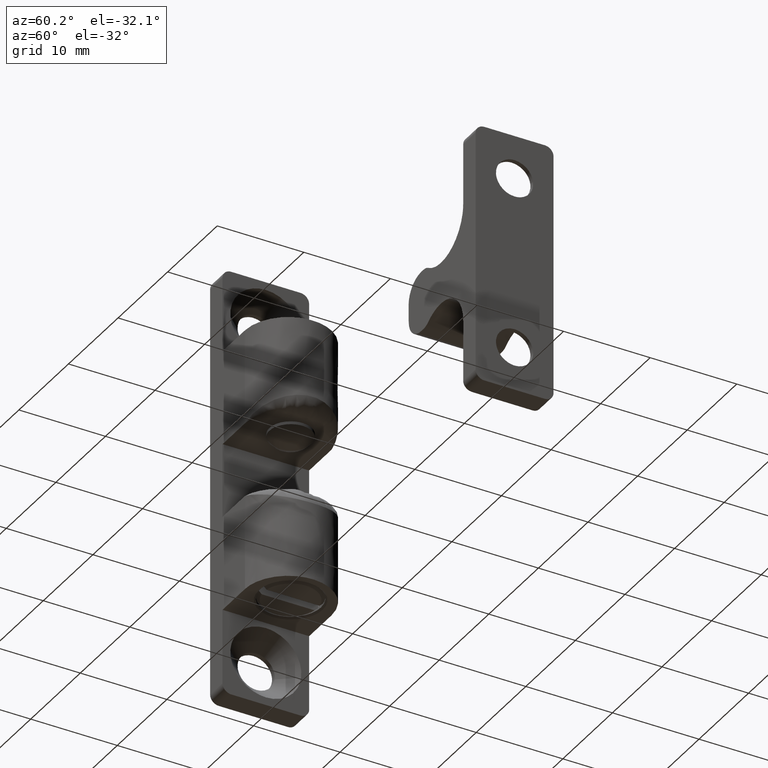
[diagram: clean part render]
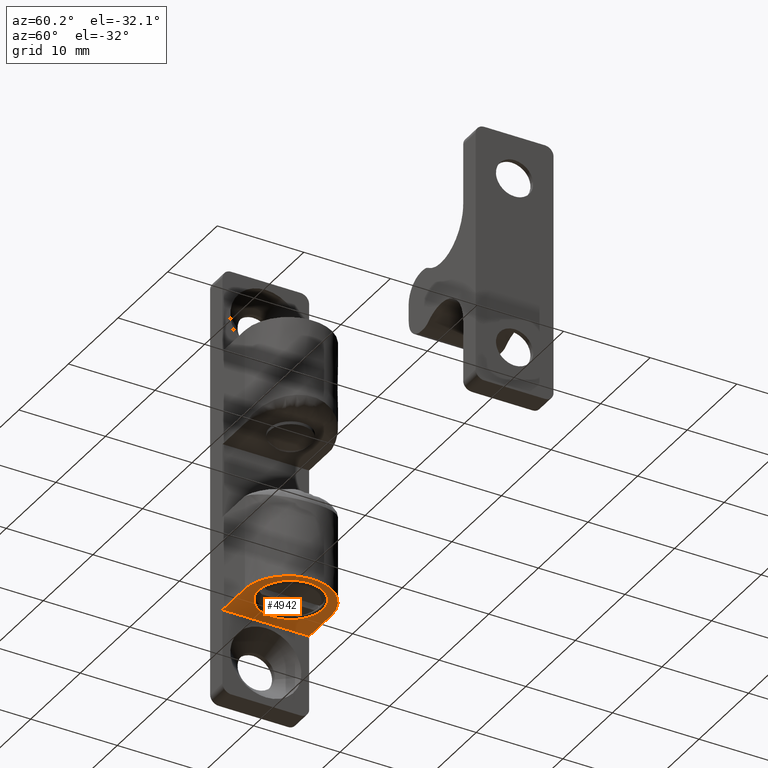
[diagram: same view with one face highlighted and labeled with its STEP entity id]
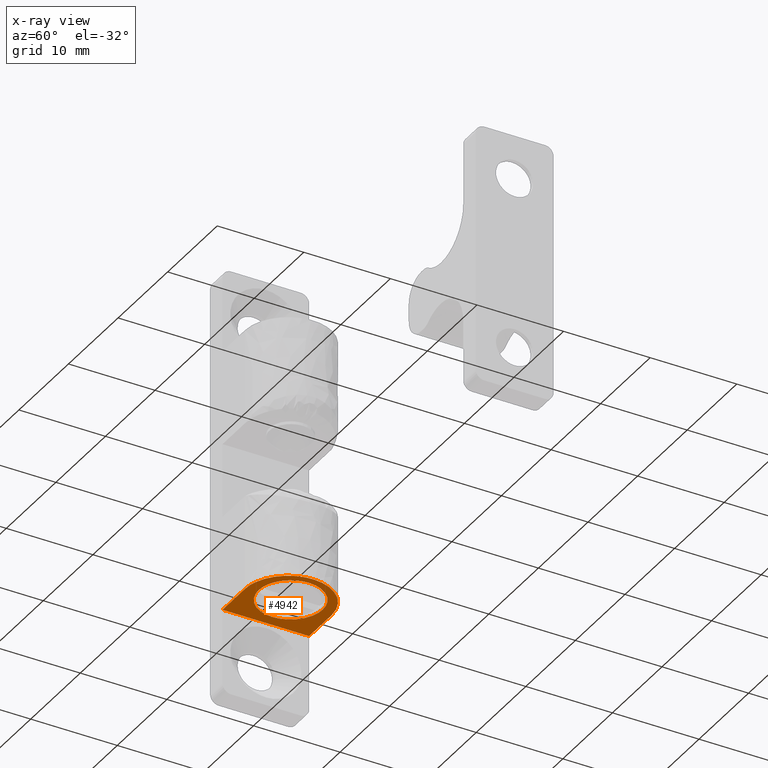
[diagram: x-ray of the same camera — body ghosted, the highlighted face saturated]
A machine part, auxiliary view. The second image highlights one B-rep face of the part: STEP entity #4942.
The next image is the same camera in x-ray: the body ghosted, the highlighted face saturated — about 0% of this face is hidden behind the body in this view.
In plain terms, the highlighted face is a freeform B-spline surface patch.
Its self-contained STEP definition (entity closure, byte-faithful):
#2490=CARTESIAN_POINT('',(15.300000000005880,-3.384256095397491,8.995597098422064));
#2491=VERTEX_POINT('',#2490);
#2497=CARTESIAN_POINT('',(15.300000000000001,0.0,3.799999999999999));
#2498=VERTEX_POINT('',#2497);
#2499=CARTESIAN_POINT('',(15.300000000000001,0.0,3.799999999999999));
#2500=CARTESIAN_POINT('',(15.300000000000004,-3.700000000000000,3.800000000000000));
#2501=CARTESIAN_POINT('',(15.300000000000001,-3.700000000000000,7.500000000000000));
#2502=CARTESIAN_POINT('',(15.299999999999995,-3.700000000000001,8.281127783905674));
#2503=CARTESIAN_POINT('',(15.300000000005889,-3.384256095397491,8.995597098422064));
#2511=(BOUNDED_CURVE()B_SPLINE_CURVE(2,(#2499,#2500,#2501,#2502,#2503),.UNSPECIFIED.,.F.,.U.)B_SPLINE_CURVE_WITH_KNOTS((3,2,3),(0.500000000000000,0.750000000000000,0.818638421546023),.UNSPECIFIED.)CURVE()GEOMETRIC_REPRESENTATION_ITEM()RATIONAL_B_SPLINE_CURVE((1.0,0.707106781186548,1.0,0.919585087116443,0.883326595745593))REPRESENTATION_ITEM(''));
#2512=EDGE_CURVE('',#2498,#2491,#2511,.T.);
#2514=CARTESIAN_POINT('',(15.300000000041740,3.699859115376502,7.532288181650272));
#2515=VERTEX_POINT('',#2514);
#2516=CARTESIAN_POINT('',(15.300000000041742,3.699859115376502,7.532288181650272));
#2517=CARTESIAN_POINT('',(15.300000000000004,3.700000000000001,7.516144398342537));
#2518=CARTESIAN_POINT('',(15.300000000000001,3.700000000000000,7.500000000000000));
#2519=CARTESIAN_POINT('',(15.300000000000004,3.700000000000000,3.800000000000000));
#2520=CARTESIAN_POINT('',(15.300000000000001,0.0,3.799999999999999));
#2528=(BOUNDED_CURVE()B_SPLINE_CURVE(2,(#2516,#2517,#2518,#2519,#2520),.UNSPECIFIED.,.F.,.U.)B_SPLINE_CURVE_WITH_KNOTS((3,2,3),(0.248460105635884,0.250000000000000,0.500000000000000),.UNSPECIFIED.)CURVE()GEOMETRIC_REPRESENTATION_ITEM()RATIONAL_B_SPLINE_CURVE((0.996414028032993,0.998195901532245,1.0,0.707106781186548,1.0))REPRESENTATION_ITEM(''));
#2529=EDGE_CURVE('',#2515,#2498,#2528,.T.);
#2618=CARTESIAN_POINT('',(15.300000000000001,0.0,11.199999999999999));
#2619=VERTEX_POINT('',#2618);
#2620=CARTESIAN_POINT('',(15.300000000000001,0.0,11.199999999999999));
#2621=CARTESIAN_POINT('',(15.300000000000010,3.667851478594837,11.200000000000001));
#2622=CARTESIAN_POINT('',(15.300000000041734,3.699859115376502,7.532288181650272));
#2630=(BOUNDED_CURVE()B_SPLINE_CURVE(2,(#2620,#2621,#2622),.UNSPECIFIED.,.F.,.U.)B_SPLINE_CURVE_WITH_KNOTS((3,3),(0.0,0.248460105635884),.UNSPECIFIED.)CURVE()GEOMETRIC_REPRESENTATION_ITEM()RATIONAL_B_SPLINE_CURVE((1.0,0.708910879654302,0.996414028032993))REPRESENTATION_ITEM(''));
#2631=EDGE_CURVE('',#2619,#2515,#2630,.T.);
#2633=CARTESIAN_POINT('',(15.300000000005886,-3.384256095397490,8.995597098422064));
#2634=CARTESIAN_POINT('',(15.299999999999997,-2.410069009488506,11.199999999999999));
#2635=CARTESIAN_POINT('',(15.300000000000001,0.0,11.199999999999999));
#2643=(BOUNDED_CURVE()B_SPLINE_CURVE(2,(#2633,#2634,#2635),.UNSPECIFIED.,.F.,.U.)B_SPLINE_CURVE_WITH_KNOTS((3,3),(0.818638421546023,1.0),.UNSPECIFIED.)CURVE()GEOMETRIC_REPRESENTATION_ITEM()RATIONAL_B_SPLINE_CURVE((0.883326595745592,0.787521694070105,1.0))REPRESENTATION_ITEM(''));
#2644=EDGE_CURVE('',#2491,#2619,#2643,.T.);
#4730=CARTESIAN_POINT('',(15.300000000000001,5.0,7.0));
#4731=VERTEX_POINT('',#4730);
#4738=CARTESIAN_POINT('',(15.300000000000001,-5.0,7.0));
#4739=VERTEX_POINT('',#4738);
#4745=CARTESIAN_POINT('',(15.300000000000001,4.999999999999980,7.0));
#4746=CARTESIAN_POINT('',(15.300000000000004,4.999999999999981,12.0));
#4747=CARTESIAN_POINT('',(15.300000000000001,-2.081668E-014,12.0));
#4748=CARTESIAN_POINT('',(15.300000000000004,-5.000000000000021,12.0));
#4749=CARTESIAN_POINT('',(15.300000000000001,-5.000000000000021,7.0));
#4757=(BOUNDED_CURVE()B_SPLINE_CURVE(2,(#4745,#4746,#4747,#4748,#4749),.UNSPECIFIED.,.F.,.U.)B_SPLINE_CURVE_WITH_KNOTS((3,2,3),(0.0,0.500000000000000,1.0),.UNSPECIFIED.)CURVE()GEOMETRIC_REPRESENTATION_ITEM()RATIONAL_B_SPLINE_CURVE((1.0,0.707106781186548,1.0,0.707106781186548,1.0))REPRESENTATION_ITEM(''));
#4758=EDGE_CURVE('',#4731,#4739,#4757,.T.);
#4768=CARTESIAN_POINT('',(15.300000000000001,5.0,2.500000000000000));
#4769=VERTEX_POINT('',#4768);
#4815=CARTESIAN_POINT('',(15.300000000000001,5.0,2.500000000000000));
#4816=CARTESIAN_POINT('',(15.300000000000001,5.0,7.0));
#4817=QUASI_UNIFORM_CURVE('',1,(#4815,#4816),.UNSPECIFIED.,.F.,.U.);
#4818=EDGE_CURVE('',#4769,#4731,#4817,.T.);
#4834=CARTESIAN_POINT('',(15.300000000000001,-5.0,2.500000000000000));
#4835=VERTEX_POINT('',#4834);
#4841=CARTESIAN_POINT('',(15.300000000000001,-5.0,2.500000000000000));
#4842=CARTESIAN_POINT('',(15.300000000000001,-5.0,7.0));
#4843=QUASI_UNIFORM_CURVE('',1,(#4841,#4842),.UNSPECIFIED.,.F.,.U.);
#4844=EDGE_CURVE('',#4835,#4739,#4843,.T.);
#4921=CARTESIAN_POINT('',(15.300000000000001,-5.499499980618060,2.025475018412846));
#4922=CARTESIAN_POINT('',(15.300000000000001,-5.499499980618060,12.474525236396961));
#4923=CARTESIAN_POINT('',(15.300000000000001,5.499500248838961,2.025475018412846));
#4924=CARTESIAN_POINT('',(15.300000000000001,5.499500248838961,12.474525236396961));
#4925=B_SPLINE_SURFACE_WITH_KNOTS('',1,1,((#4921,#4923),(#4922,#4924)),.UNSPECIFIED.,.F.,.F.,.U.,(2,2),(2,2),(0.0,10.449050217984119),(0.0,10.999000229457019),.UNSPECIFIED.);
#4926=ORIENTED_EDGE('',*,*,#4818,.T.);
#4927=ORIENTED_EDGE('',*,*,#4758,.T.);
#4928=ORIENTED_EDGE('',*,*,#4844,.F.);
#4929=CARTESIAN_POINT('',(15.300000000000001,-5.0,2.500000000000000));
#4930=CARTESIAN_POINT('',(15.300000000000001,5.0,2.500000000000000));
#4931=QUASI_UNIFORM_CURVE('',1,(#4929,#4930),.UNSPECIFIED.,.F.,.U.);
#4932=EDGE_CURVE('',#4835,#4769,#4931,.T.);
#4933=ORIENTED_EDGE('',*,*,#4932,.T.);
#4934=EDGE_LOOP('',(#4926,#4927,#4928,#4933));
#4935=FACE_OUTER_BOUND('',#4934,.T.);
#4936=ORIENTED_EDGE('',*,*,#2631,.T.);
#4937=ORIENTED_EDGE('',*,*,#2529,.T.);
#4938=ORIENTED_EDGE('',*,*,#2512,.T.);
#4939=ORIENTED_EDGE('',*,*,#2644,.T.);
#4940=EDGE_LOOP('',(#4936,#4937,#4938,#4939));
#4941=FACE_BOUND('',#4940,.T.);
#4942=ADVANCED_FACE('',(#4935,#4941),#4925,.F.);